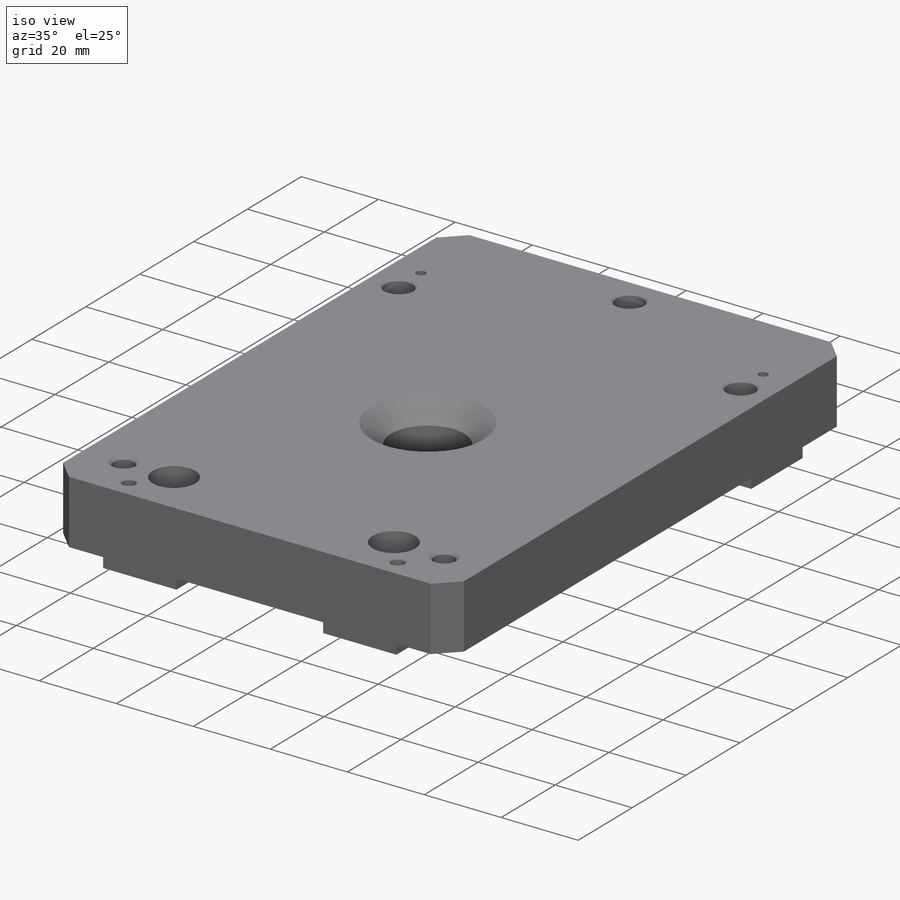
[diagram: iso view]
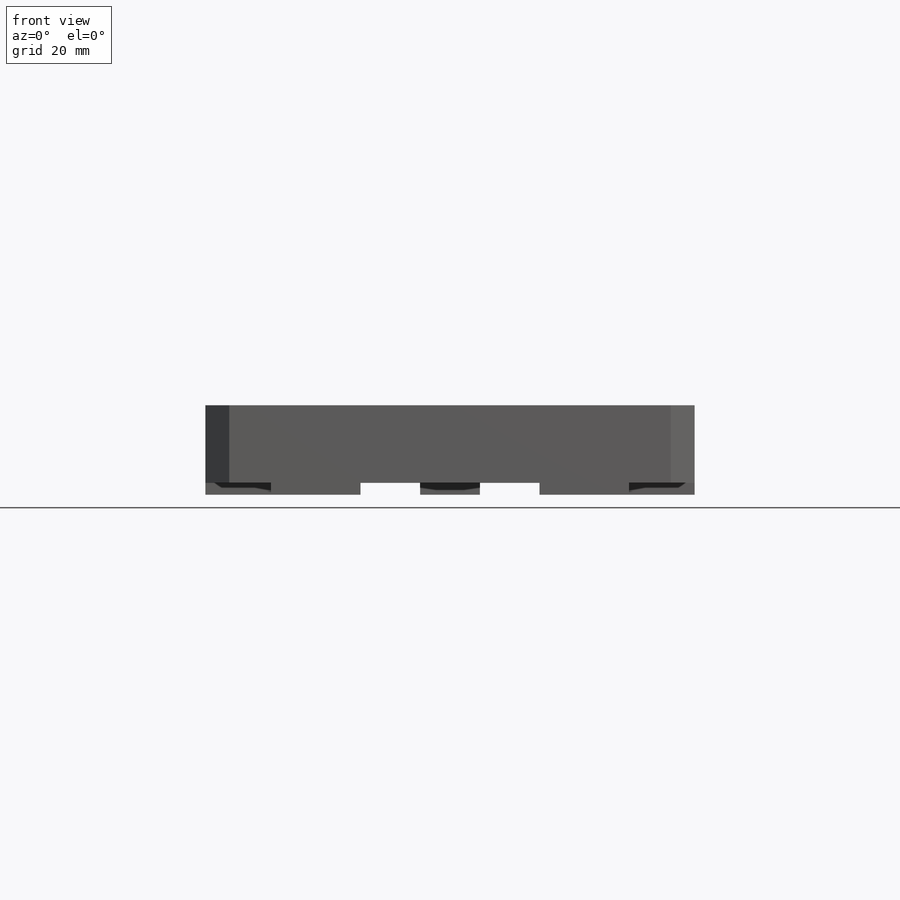
[diagram: front view]
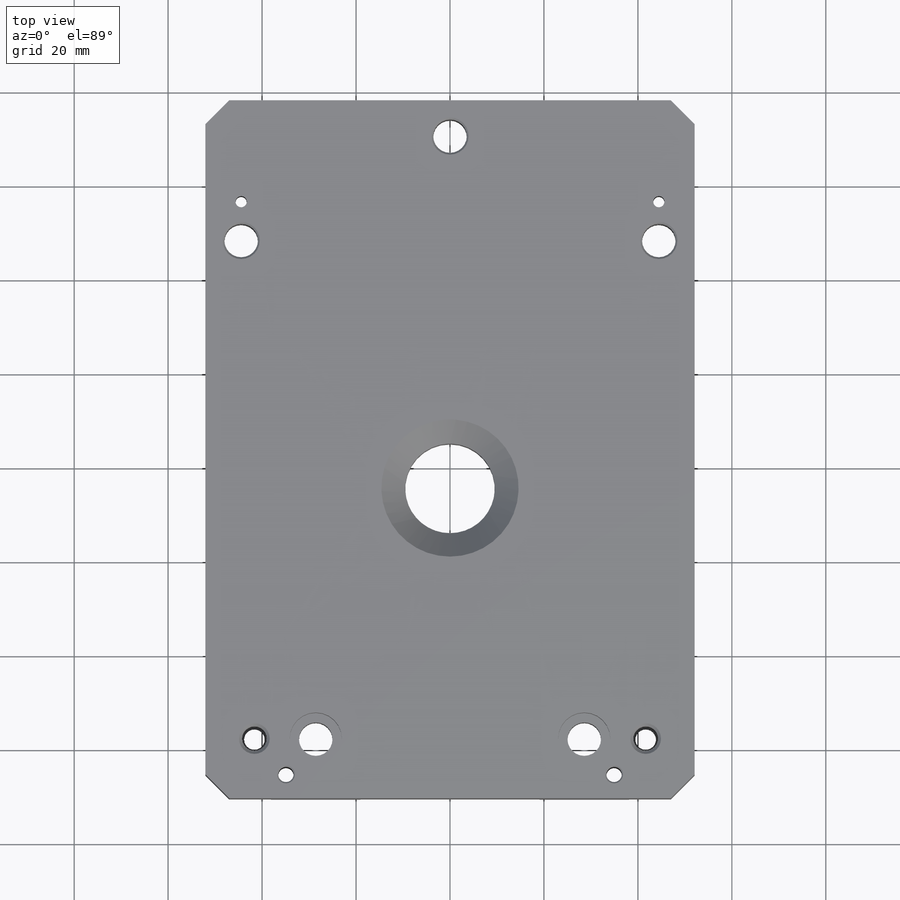
[diagram: top view]
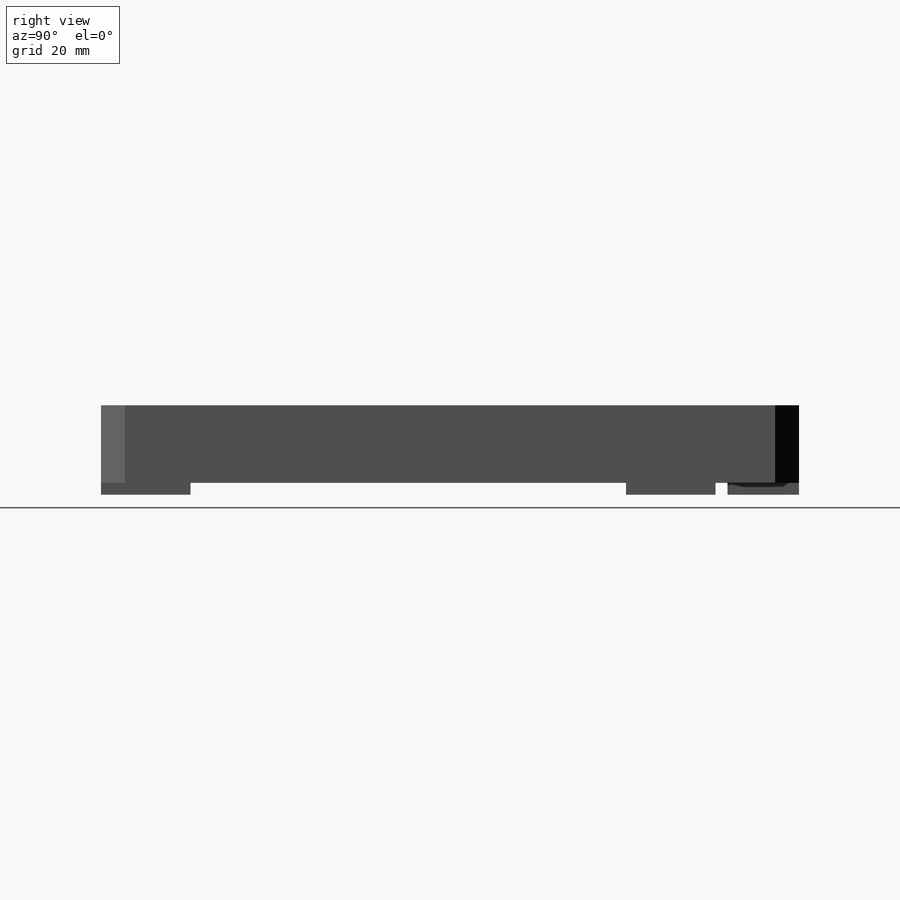
[diagram: right view]
SOLIDWORKS PART (.sldprt)
format: sldprt  version: not decoded by parser v0  size: 607,744 bytes
history: native  units: mm
features: sketch x14, hole x6, extrude x2, material x1, chamfer x1 + 1 further entry (+13 scaffold rows collapsed)
feature tree (38):
  scaffold x13  (default folders/planes/origin — collapsed)
  material  "6061-T6 Al"
  "Origin"  ID=-1
  sketch  "Sketch41"  dims[D1=52.07mm D2=52.07mm D3=38.1mm D4=110.49mm D5=44.45mm]
  extrude  "Extrude16"  Depth=16.51mm
  sketch  "Sketch42"  dims[c1.D1=19.05mm c1.D2=19.05mm c1.D3=38.1mm c1.D4=38.1mm c1.D5=91.44mm c1.D6=110.49mm c1.D7=38.1mm c1.D8=38.1mm c1.D9=52.07mm c1.D10=52.07mm c1.D11=~50.815873mm c2.D11=90.0deg c3.D11=1.27mm c3.D12=20.32mm c3.D13=22.86mm c3.D14=38.1mm c3.D15=6.35mm c3.D16=6.35mm]
  extrude  "Extrude17"  Depth=2.54mm
  hole  "1/4 Clearance Hole3"  Diameter=7.14248mm Depth=19.05mm
  sketch  "Sketch44"  dims[D1=44.45mm D2=8.255mm D3=44.45mm D4=30.48mm]
  sketch  "Sketch43"  dims[hole-wizard template sketch: 47 standard entries collapsed; hole parameters kept: c15.Thru Hole Depth=19.05mm c15.Near C'Sink Dia.=7.9248mm c15.D4=~3.666174mm c15.Near C'Sink Angle=90.0deg c15.Far C'Sink Dia.=7.9248mm c15.D6=~9.919017mm c15.Far C'Sink Angle=90.0deg]
  hole  "Press Pin holes for Magnet Bracket Pins"  Diameter=3.175mm Depth=6.35mm
  sketch  "Sketch40"  dims[D1=16.51mm D2=44.45mm D3=44.45mm]
  sketch  "Sketch39"  dims[hole-wizard template sketch: 35 standard entries collapsed; hole parameters above]
  hole  "3/32 (0.09375) Diameter Hole1"  Diameter=2.38125mm Depth=19.050025mm
  sketch  "Sketch48"
  sketch  "Sketch47"  dims[hole-wizard template sketch: 60 standard entries collapsed; hole parameters kept: c18.Thru Hole Depth=~19.050025mm]
  hole  "CBORE for 1/4 Socket Head Cap Screw1"  Diameter=7.14248mm Depth=19.050025mm
  sketch  "Sketch8"  dims[c1.D1=57.15mm c1.D2=97.79mm c1.D3=28.575mm c2.D1=28.575mm]
  sketch  "Sketch7"  dims[hole-wizard template sketch: 42 standard entries collapsed; hole parameters kept: c12.Thru Hole Depth=~19.050025mm c12.C'Bore Dia.=11.1125mm c12.C'Bore Depth=6.35mm c12.Far C'Sink Dia.=7.9248mm c12.D6=~2.963249mm c12.Far C'Sink Angle=90.0deg]
  hole  "1/8 (0.125) Diameter Hole1"  Diameter=3.2639mm Depth=19.05mm
  sketch  "Sketch46"  dims[c1.D1=~7.14248mm c1.D3=~7.14248mm c2.D1=~7.92475mm c2.D2=~7.92475mm c2.D3=~7.14248mm c3.D1=105.41mm c3.D2=34.925mm c3.D3=34.925mm c4.D1=7.62mm c4.D2=6.35mm c4.D3=6.35mm c5.D1=7.62mm c5.D2=6.35mm c5.D3=6.35mm]
  sketch  "Sketch45"  dims[hole-wizard template sketch: 46 standard entries collapsed; hole parameters kept: c15.Thru Hole Dia.=3.2639mm c15.Thru Hole Depth=19.05mm c15.Near C'Sink Dia.=3.81mm c15.D4=~3.666174mm c15.Near C'Sink Angle=90.0deg c15.Far C'Sink Dia.=3.81mm c15.D6=~9.919017mm c15.Far C'Sink Angle=90.0deg]
  hole  "Tapped Hole for #8-32 Helicoil1"  Diameter=4.3942mm Depth=19.050025mm
  sketch  "Sketch38"  dims[c1.D1=3.175mm c1.D2=3.175mm c2.D1=98.2218mm c2.D2=42.1132mm c2.D3=42.1132mm c3.D1=10.16mm c3.D2=10.16mm]
  sketch  "Sketch37"  dims[hole-wizard template sketch: 42 standard entries collapsed; hole parameters kept: c12.Thru Tap Drill Depth=~19.050025mm c12.Thread Major Dia.=~5.27558mm c12.Thread Depth=13.0048mm c12.Near C'Sink Dia.=~6.54558mm c12.D6=~4.399409mm c12.Near C'Sink Angle=90.0deg]
  chamfer  "Chamfer1"  Distance=5.08mm Angle=45deg
decode coverage: 22 of 23 modeling features carry decoded parameters; 1 rows unclassified (native names shown)
note: ~ marks probable driven/reference dimensions
summary: Diameter pulled from absorbed wizard sketch
note: suppression state not decoded; provenance and decode notes live in map.json
